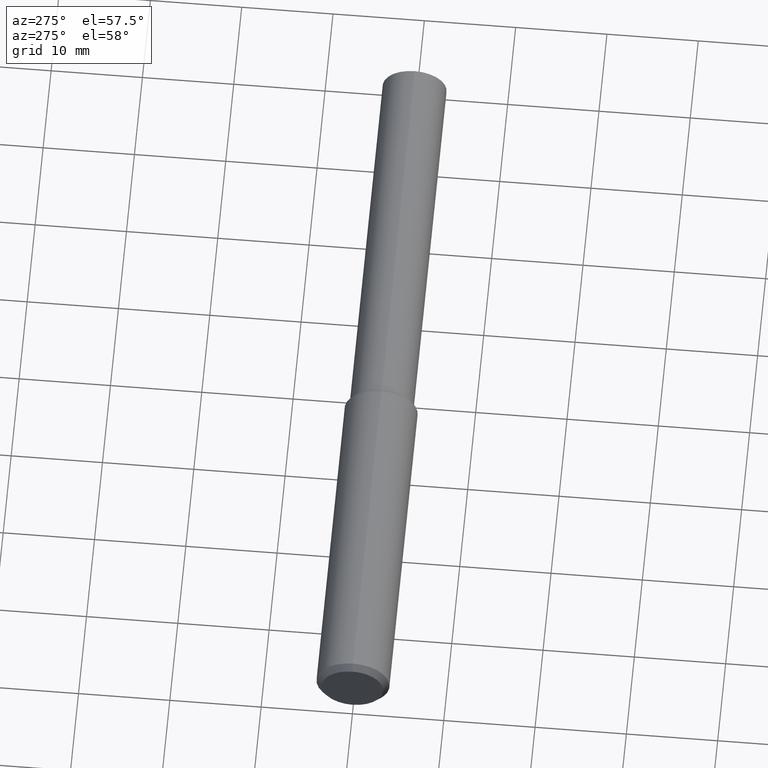
[diagram: clean part render]
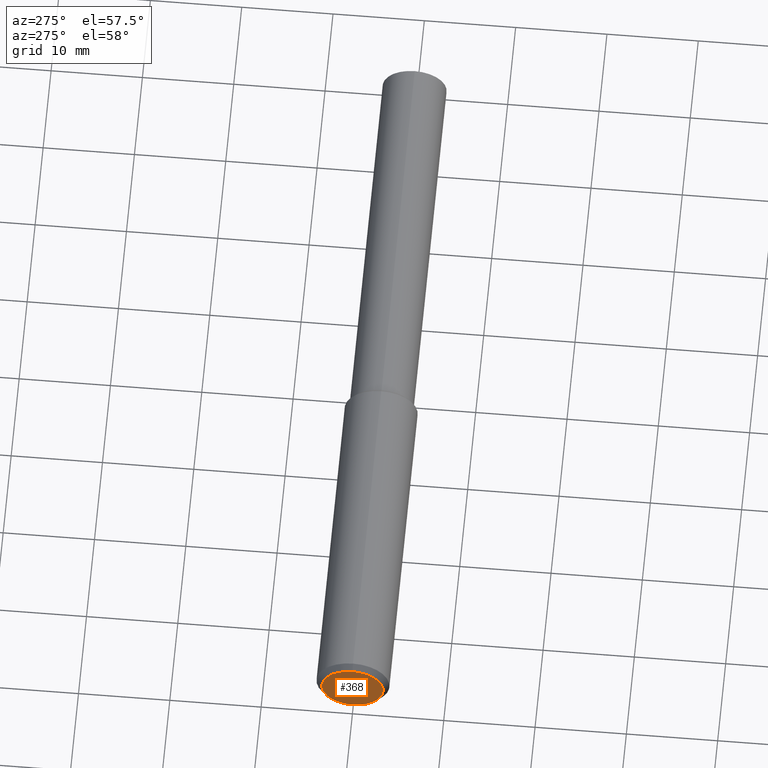
[diagram: same view with one face highlighted and labeled with its STEP entity id]
A machine part, auxiliary view. The second image highlights one B-rep face of the part: STEP entity #368.
In plain terms, the highlighted planar face has unit normal (-1, 0, 0).
Its self-contained STEP definition (entity closure, byte-faithful):
#48 = CARTESIAN_POINT ( 'NONE',  ( 0.000000000000000000, 0.000000000000000000, 0.000000000000000000 ) ) ;
#54 = CARTESIAN_POINT ( 'NONE',  ( 0.000000000000000000, 0.000000000000000000, -0.1324803149606299246 ) ) ;
#56 = DIRECTION ( 'NONE',  ( -1.000000000000000000, 0.000000000000000000, 0.000000000000000000 ) ) ;
#67 = ORIENTED_EDGE ( 'NONE', *, *, #194, .F. ) ;
#73 = CIRCLE ( 'NONE', #170, 0.1324803149606299246 ) ;
#81 = DIRECTION ( 'NONE',  ( 0.000000000000000000, 0.000000000000000000, -1.000000000000000000 ) ) ;
#82 = PLANE ( 'NONE',  #295 ) ;
#85 = CARTESIAN_POINT ( 'NONE',  ( 0.000000000000000000, 1.775496786559105798E-17, 0.1324803149606299246 ) ) ;
#93 = ORIENTED_EDGE ( 'NONE', *, *, #124, .F. ) ;
#99 = DIRECTION ( 'NONE',  ( 1.000000000000000000, -0.000000000000000000, -0.000000000000000000 ) ) ;
#124 = EDGE_CURVE ( 'NONE', #247, #208, #219, .T. ) ;
#153 = EDGE_LOOP ( 'NONE', ( #67, #93 ) ) ;
#170 = AXIS2_PLACEMENT_3D ( 'NONE', #348, #265, #81 ) ;
#194 = EDGE_CURVE ( 'NONE', #208, #247, #73, .T. ) ;
#200 = CARTESIAN_POINT ( 'NONE',  ( 3.061616997868361794E-19, 0.1324803149606299246, 0.000000000000000000 ) ) ;
#208 = VERTEX_POINT ( 'NONE', #54 ) ;
#219 = CIRCLE ( 'NONE', #240, 0.1324803149606299246 ) ;
#240 = AXIS2_PLACEMENT_3D ( 'NONE', #48, #99, #277 ) ;
#247 = VERTEX_POINT ( 'NONE', #85 ) ;
#265 = DIRECTION ( 'NONE',  ( 1.000000000000000000, -0.000000000000000000, -0.000000000000000000 ) ) ;
#277 = DIRECTION ( 'NONE',  ( 0.000000000000000000, 0.000000000000000000, -1.000000000000000000 ) ) ;
#291 = DIRECTION ( 'NONE',  ( 0.000000000000000000, 0.000000000000000000, 1.000000000000000000 ) ) ;
#295 = AXIS2_PLACEMENT_3D ( 'NONE', #200, #56, #291 ) ;
#348 = CARTESIAN_POINT ( 'NONE',  ( 0.000000000000000000, 0.000000000000000000, 0.000000000000000000 ) ) ;
#368 = ADVANCED_FACE ( 'NONE', ( #375 ), #82, .T. ) ;
#375 = FACE_OUTER_BOUND ( 'NONE', #153, .T. ) ;